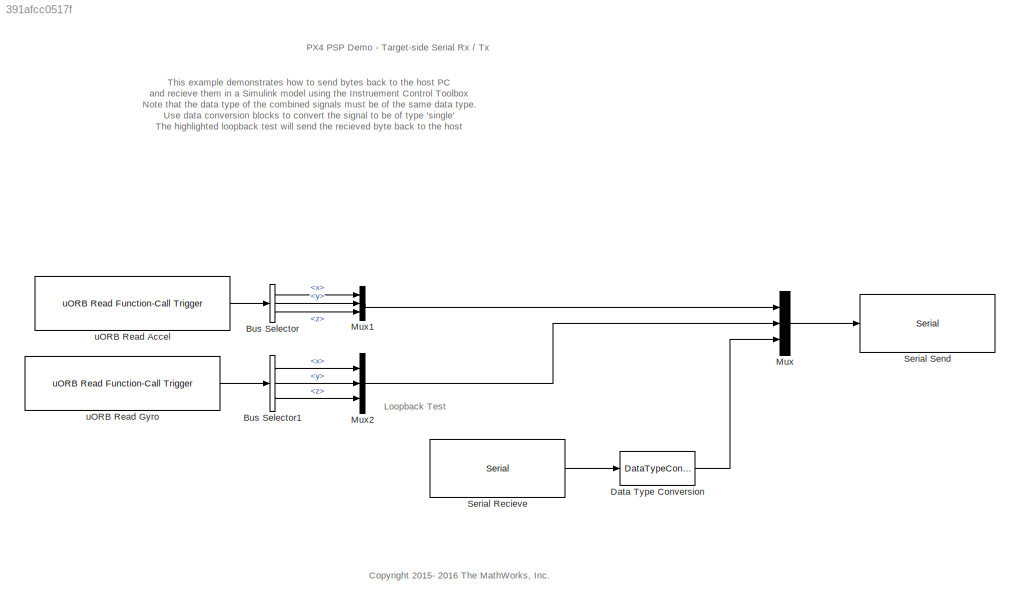
MODEL slx_391afcc0517f
KIND model
CONFIG AbsTol = auto
CONFIG EnableMultiTasking = on
CONFIG FixedStep = 0.01
CONFIG MaxStep = auto
CONFIG MinStep = auto
CONFIG RelTol = 1e-3
CONFIG SampleTimeConstraint = Unconstrained
CONFIG Solver = FixedStepDiscrete
CONFIG SolverName = FixedStepDiscrete
CONFIG StartTime = 0.0
CONFIG StopTime = inf
BLOCK [BusSelector] Bus Selector
  OutputAsBus = off
  OutputSignals = x,y,z
  Ports = [1, 3]
BLOCK [BusSelector] Bus Selector1
  OutputAsBus = off
  OutputSignals = x,y,z
  Ports = [1, 3]
BLOCK [DataTypeConversion] Data Type Conversion
  OutDataTypeStr = single
  RndMeth = Floor
  SaturateOnIntegerOverflow = off
BLOCK [Mux] Mux
  DisplayOption = bar
  Inputs = 3
  Ports = [3, 1]
BLOCK [Mux] Mux1
  DisplayOption = bar
  Inputs = 3
  Ports = [3, 1]
BLOCK [Mux] Mux2
  DisplayOption = bar
  Inputs = 3
  Ports = [3, 1]
BLOCK [Reference] Serial Recieve  REF=pixhawk_slib_ADC_serial/Serial
  Ports = [0, 1]
  SourceBlock = pixhawk_slib_ADC_serial/Serial
  SourceProductName = Pixhawk Target Blocks
  SourceType = codertarget.pixhawk.blocks.SerialCOM
BLOCK [Reference] Serial Send  REF=pixhawk_slib_ADC_serial/Serial
  Ports = [1]
  SourceBlock = pixhawk_slib_ADC_serial/Serial
  SourceProductName = Pixhawk Target Blocks
  SourceType = codertarget.pixhawk.blocks.SerialCOM
BLOCK [Reference] uORB Read Accel  REF=pixhawk_slib_uORB_RW/uORB Read Function-Call Trigger
  Ports = [0, 1]
  SourceBlock = pixhawk_slib_uORB_RW/uORB Read Function-Call Trigger
  SourceProductName = Pixhawk Target Blocks
BLOCK [Reference] uORB Read Gyro  REF=pixhawk_slib_uORB_RW/uORB Read Function-Call Trigger
  Ports = [0, 1]
  SourceBlock = pixhawk_slib_uORB_RW/uORB Read Function-Call Trigger
  SourceProductName = Pixhawk Target Blocks
ANNOTATION (root): This example demonstrates how to send bytes back to the host PC and recieve them in a Simulink model using the Instruement Control Toolbox Note that the data type of the combined signals must be of the same data type. Use data conversion blocks to convert the signal to be of type 'single' The highlighted loopback test will send the recieved byte back to the host
ANNOTATION (root): PX4 PSP Demo - Target-side Serial Rx / Tx
ANNOTATION (root): <copyright redacted>
ANNOTATION (root): Loopback Test
LINE Bus Selector1:1 -> Mux2:1
LINE Bus Selector1:2 -> Mux2:2
LINE Bus Selector1:3 -> Mux2:3
LINE Bus Selector:1 -> Mux1:1
LINE Bus Selector:2 -> Mux1:2
LINE Bus Selector:3 -> Mux1:3
LINE Data Type Conversion:1 -> Mux:3
LINE Mux1:1 -> Mux:1
LINE Mux2:1 -> Mux:2
LINE Mux:1 -> Serial Send:1
LINE Serial Recieve:1 -> Data Type Conversion:1
LINE uORB Read Accel:1 -> Bus Selector:1
LINE uORB Read Gyro:1 -> Bus Selector1:1
